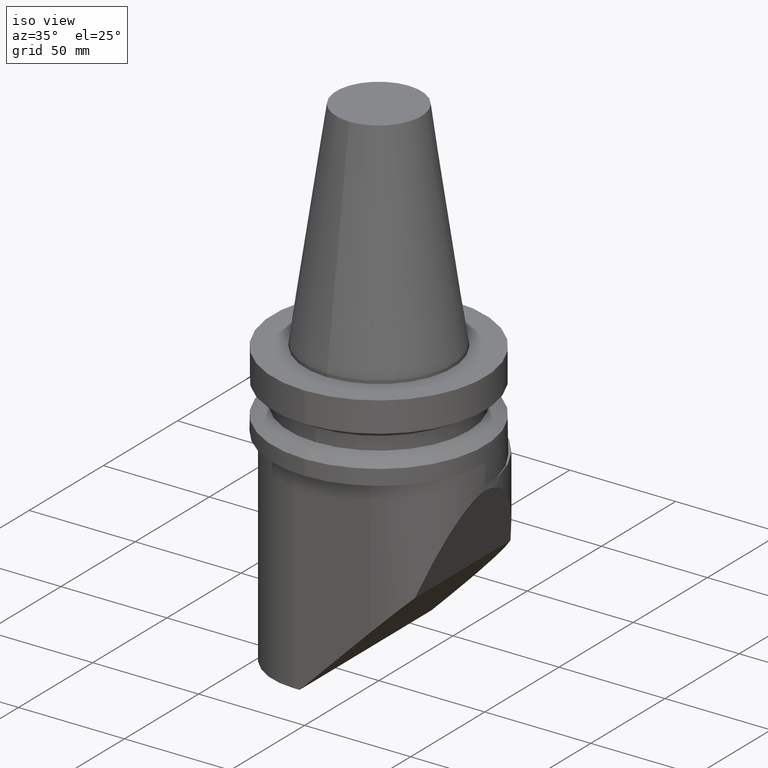
[diagram: clean part render]
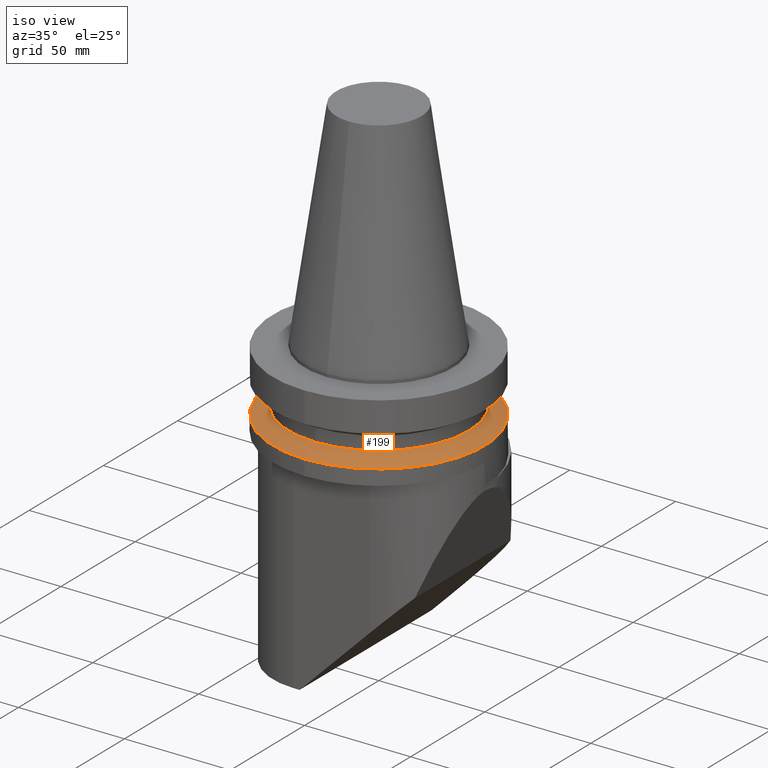
[diagram: same view with one face highlighted and labeled with its STEP entity id]
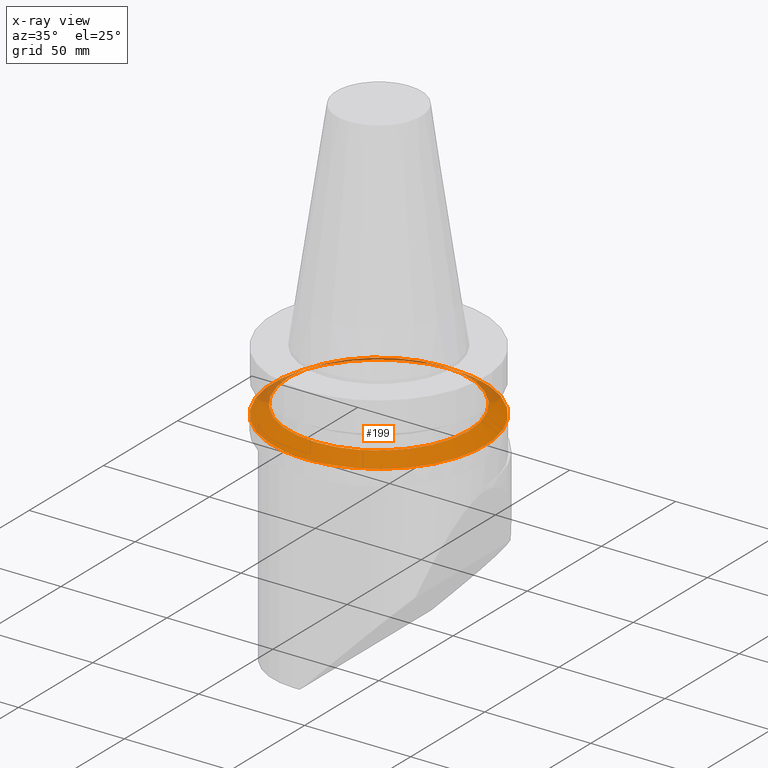
[diagram: x-ray of the same camera — body ghosted, the highlighted face saturated]
A machine part, iso view. The second image highlights one B-rep face of the part: STEP entity #199.
The next image is the same camera in x-ray: the body ghosted, the highlighted face saturated — about 11% of this face is hidden behind the body in this view.
In plain terms, the highlighted conical surface has half-angle 60 deg.
Its self-contained STEP definition (entity closure, byte-faithful):
#152=EDGE_CURVE('Unnamed[1]',#374,#374,#375,.T.);
#170=EDGE_CURVE('Unnamed[1]',#403,#403,#404,.T.);
#199=ADVANCED_FACE('Unnamed[1]',(#442,#443),#444,.T.);
#374=VERTEX_POINT('',#655);
#375=CIRCLE('',#656,42.5000000000006);
#403=VERTEX_POINT('',#697);
#404=CIRCLE('',#698,50.0000000000003);
#442=FACE_BOUND('',#751,.T.);
#443=FACE_BOUND('',#752,.T.);
#444=CONICAL_SURFACE('',#753,46.2500000000004,1.04719755119655);
#655=CARTESIAN_POINT('',(-6.8194379233864E-015,-42.5000000000006,-26.3698729810796));
#656=AXIS2_PLACEMENT_3D('',#973,#974,#975);
#697=CARTESIAN_POINT('',(-8.00306683242813E-015,-50.0000000000004,-30.7000000000022));
#698=AXIS2_PLACEMENT_3D('',#993,#994,#995);
#751=EDGE_LOOP('',(#1047));
#752=EDGE_LOOP('',(#1048));
#753=AXIS2_PLACEMENT_3D('',#1049,#1050,#1051);
#973=CARTESIAN_POINT('',(-1.61468902701008E-015,-3.73073487747338E-014,-26.3698729810797));
#974=DIRECTION('',(6.12323399573678E-017,1.04638831828052E-015,1.0));
#975=DIRECTION('',(-1.22464679914735E-016,-1.0,1.04638831828052E-015));
#993=CARTESIAN_POINT('',(-1.87983283669133E-015,-4.18383431040052E-014,-30.7000000000023));
#994=DIRECTION('',(6.12323399573678E-017,1.04638831828052E-015,1.0));
#995=DIRECTION('',(-1.22464679914735E-016,-1.0,1.04638831828052E-015));
#1047=ORIENTED_EDGE('',*,*,#152,.F.);
#1048=ORIENTED_EDGE('',*,*,#170,.T.);
#1049=CARTESIAN_POINT('',(-1.74726093185071E-015,-3.95728459393695E-014,-28.534936490541));
#1050=DIRECTION('',(-6.12323399573678E-017,-1.04638831828052E-015,-1.0));
#1051=DIRECTION('',(-1.22464679914735E-016,-1.0,1.04638831828052E-015));